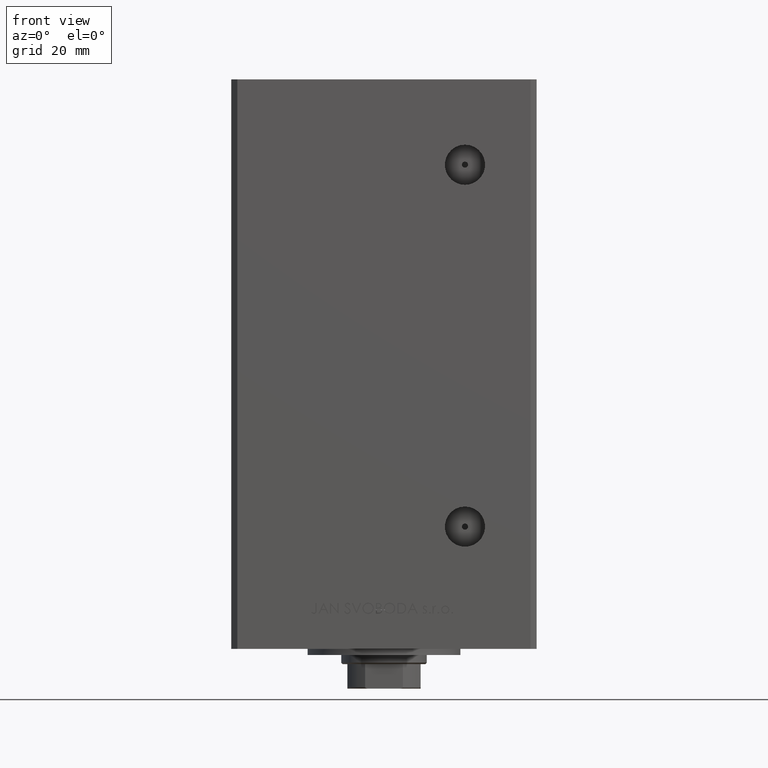
[diagram: clean part render]
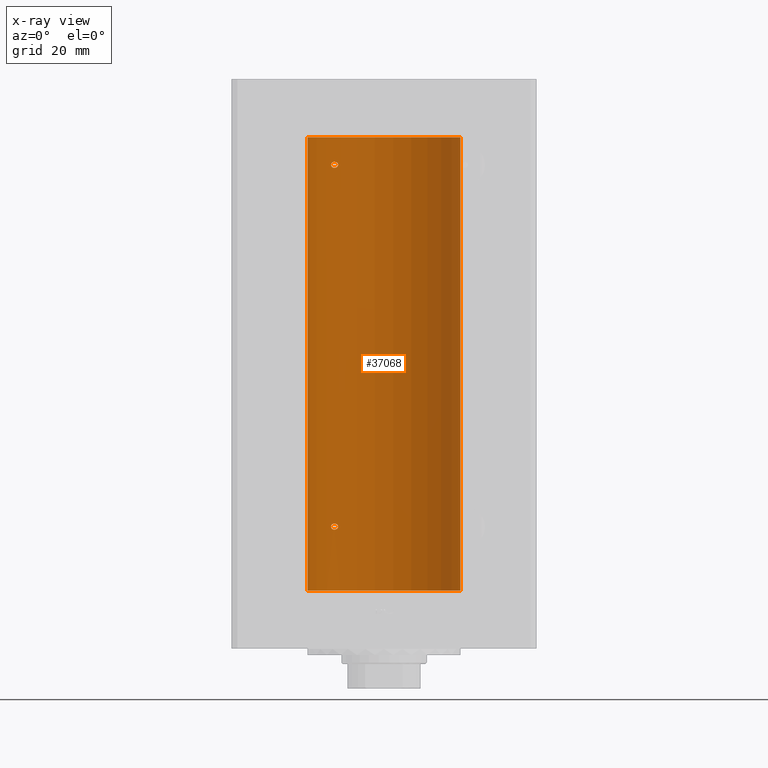
[diagram: x-ray — body ghosted, one internal face saturated and labeled with its STEP entity id]
A machine part, front view, then the same camera in x-ray: the body is ghosted and one INTERNAL B-rep face — a face not visible from any outside direction — is saturated and labeled: STEP entity #37068.
In plain terms, the highlighted cylindrical surface (partial cylindrical patch) has radius 25 mm, axis along (-0, -0, -1).
Its self-contained STEP definition (entity closure, byte-faithful):
#67 = CARTESIAN_POINT ( 'NONE',  ( -25.00000000000000000, 0.000000000000000000, 148.5000000000000000 ) ) ;
#578 = CYLINDRICAL_SURFACE ( 'NONE', #36050, 25.00000000000000000 ) ;
#1517 = CIRCLE ( 'NONE', #3138, 25.00000000000000000 ) ;
#2060 = CARTESIAN_POINT ( 'NONE',  ( -17.34935157289810093, 17.99999999999978328, 21.00000000000008882 ) ) ;
#2314 = CARTESIAN_POINT ( 'NONE',  ( -15.58230678163759642, 19.55030131031898577, 140.3437394867029582 ) ) ;
#2359 = CARTESIAN_POINT ( 'NONE',  ( -17.34935157289749696, 17.99999999999998579, 20.82899836042580688 ) ) ;
#2433 = EDGE_LOOP ( 'NONE', ( #13028, #10326 ) ) ;
#2561 = CARTESIAN_POINT ( 'NONE',  ( -15.00000000000018474, 20.00000000000002487, 139.5840388036241393 ) ) ;
#2912 = CARTESIAN_POINT ( 'NONE',  ( -17.30269557861141294, 18.04515136187502478, 139.1660420817557053 ) ) ;
#3138 = AXIS2_PLACEMENT_3D ( 'NONE', #18367, #29516, #38416 ) ;
#3199 = VERTEX_POINT ( 'NONE', #50067 ) ;
#3368 = CARTESIAN_POINT ( 'NONE',  ( -15.58164749401203686, 19.55082150006403907, 20.15667807268518885 ) ) ;
#3505 = LINE ( 'NONE', #27363, #10161 ) ;
#3643 = DIRECTION ( 'NONE',  ( -1.000000000000000000, 0.000000000000000000, 0.000000000000000000 ) ) ;
#5667 = EDGE_CURVE ( 'NONE', #3199, #14279, #33075, .T. ) ;
#6244 = CARTESIAN_POINT ( 'NONE',  ( 0.000000000000000000, 0.000000000000000000, 0.000000000000000000 ) ) ;
#6368 = CARTESIAN_POINT ( 'NONE',  ( -15.70535969280557254, 19.45169171760800708, 21.89896077211249192 ) ) ;
#6417 = CARTESIAN_POINT ( 'NONE',  ( -15.06722189748651175, 19.94943357555936458, 20.67598032487887849 ) ) ;
#6421 = EDGE_CURVE ( 'NONE', #46401, #6955, #1517, .T. ) ;
#6466 = CARTESIAN_POINT ( 'NONE',  ( -15.06722189748648866, 19.94943357555938590, 139.1759803248788785 ) ) ;
#6612 = CARTESIAN_POINT ( 'NONE',  ( -17.34935157289749696, 17.99999999999998224, 21.17097369060632417 ) ) ;
#6620 = CARTESIAN_POINT ( 'NONE',  ( -16.99843849356149050, 18.33190197607055794, 140.2468335145756839 ) ) ;
#6955 = VERTEX_POINT ( 'NONE', #67 ) ;
#7178 = CARTESIAN_POINT ( 'NONE',  ( -16.83415218046515349, 18.48332662461723785, 20.13431726628115115 ) ) ;
#7391 = CARTESIAN_POINT ( 'NONE',  ( -15.34624284195505162, 19.73614442075940190, 140.1876185318512853 ) ) ;
#7533 = ORIENTED_EDGE ( 'NONE', *, *, #50161, .F. ) ;
#7564 = VERTEX_POINT ( 'NONE', #37162 ) ;
#7867 = EDGE_LOOP ( 'NONE', ( #9340, #22298, #15549, #34836 ) ) ;
#7935 = EDGE_CURVE ( 'NONE', #49333, #31840, #33515, .T. ) ;
#9290 = EDGE_LOOP ( 'NONE', ( #29885, #7533 ) ) ;
#9340 = ORIENTED_EDGE ( 'NONE', *, *, #26825, .F. ) ;
#10023 = CARTESIAN_POINT ( 'NONE',  ( -15.34666241858318259, 19.73581294411415854, 138.8121224605375517 ) ) ;
#10161 = VECTOR ( 'NONE', #46409, 1000.000000000000000 ) ;
#10180 = CARTESIAN_POINT ( 'NONE',  ( -15.01476641895664876, 19.98894406010705183, 21.16879456340133459 ) ) ;
#10279 = CARTESIAN_POINT ( 'NONE',  ( -16.08757264251632080, 19.13682698743034649, 138.5034427658481775 ) ) ;
#10326 = ORIENTED_EDGE ( 'NONE', *, *, #7935, .F. ) ;
#10437 = CARTESIAN_POINT ( 'NONE',  ( -14.99999999999999112, 20.00000000000000711, 139.4999999999999716 ) ) ;
#10479 = CARTESIAN_POINT ( 'NONE',  ( -17.30269557861145202, 18.04515136187498570, 20.66604208175573376 ) ) ;
#10730 = CARTESIAN_POINT ( 'NONE',  ( -16.34293146994555812, 18.91921593628406129, 19.99734259067261277 ) ) ;
#10982 = CARTESIAN_POINT ( 'NONE',  ( -15.00000000000002842, 19.99999999999998224, 20.99999999999998934 ) ) ;
#11173 = B_SPLINE_CURVE_WITH_KNOTS ( 'NONE', 3,
 ( #14246, #41400, #10180, #44708, #49015, #41155, #40405, #13989, #6368, #48021, #29449, #21356, #21603, #18047, #33016, #36839, #17305, #37087, #6612, #2060 ),
 .UNSPECIFIED., .F., .F.,
 ( 4, 2, 2, 2, 2, 2, 2, 2, 2, 4 ),
 ( 0.004032696862986568168, 0.004284699222246932983, 0.004536701581507298665, 0.005040706300028030031, 0.005544711018548761396, 0.006048715737069493628, 0.007056725174110963297, 0.007308727533371326378, 0.007560729892631690326, 0.008064734611152429497 ),
 .UNSPECIFIED. ) ;
#12445 = CARTESIAN_POINT ( 'NONE',  ( -17.34935157289806185, 17.99999999999981526, 139.5000000000000853 ) ) ;
#13028 = ORIENTED_EDGE ( 'NONE', *, *, #22819, .F. ) ;
#13336 = CIRCLE ( 'NONE', #41701, 25.00000000000000000 ) ;
#13989 = CARTESIAN_POINT ( 'NONE',  ( -15.58230678163764260, 19.55030131031895380, 21.84373948670293331 ) ) ;
#13997 = CARTESIAN_POINT ( 'NONE',  ( -15.06763582406798818, 19.94912143246363811, 139.8250699387717475 ) ) ;
#14039 = CARTESIAN_POINT ( 'NONE',  ( -15.34666241858321634, 19.73581294411414078, 20.31212246053760495 ) ) ;
#14246 = CARTESIAN_POINT ( 'NONE',  ( -15.00000000000002842, 19.99999999999998224, 20.99999999999998934 ) ) ;
#14279 = VERTEX_POINT ( 'NONE', #32884 ) ;
#14295 = CARTESIAN_POINT ( 'NONE',  ( -16.71492528194906768, 18.59135325782697734, 20.08014155834204217 ) ) ;
#14545 = CARTESIAN_POINT ( 'NONE',  ( -15.70664578139654566, 19.45064696206090105, 20.10057959949211082 ) ) ;
#14753 = CARTESIAN_POINT ( 'NONE',  ( -16.72476285461317502, 18.58415905903083498, 140.4449447607956927 ) ) ;
#15012 = CARTESIAN_POINT ( 'NONE',  ( -17.34935157289806185, 17.99999999999981526, 139.5000000000000853 ) ) ;
#15549 = ORIENTED_EDGE ( 'NONE', *, *, #34511, .T. ) ;
#16070 = DIRECTION ( 'NONE',  ( -0.000000000000000000, -0.000000000000000000, -1.000000000000000000 ) ) ;
#17305 = CARTESIAN_POINT ( 'NONE',  ( -17.19010376497224968, 18.15221652163108601, 21.53567012356800703 ) ) ;
#17850 = CARTESIAN_POINT ( 'NONE',  ( -17.05249165747622442, 18.28208333366434601, 20.29221922003641509 ) ) ;
#17900 = CARTESIAN_POINT ( 'NONE',  ( -17.34935157289806185, 17.99999999999981526, 139.5000000000000853 ) ) ;
#18047 = CARTESIAN_POINT ( 'NONE',  ( -16.99843849356152248, 18.33190197607051886, 21.74683351457564839 ) ) ;
#18054 = CARTESIAN_POINT ( 'NONE',  ( -17.14593038898727428, 18.19399314418736324, 140.0959448831964949 ) ) ;
#18095 = CARTESIAN_POINT ( 'NONE',  ( -15.01482636753736166, 19.98889854010113254, 20.83120266100769769 ) ) ;
#18150 = CARTESIAN_POINT ( 'NONE',  ( -17.05249165747618534, 18.28208333366438509, 138.7922192200364009 ) ) ;
#18317 = CARTESIAN_POINT ( 'NONE',  ( -15.01476641895662567, 19.98894406010707314, 139.6687945634013204 ) ) ;
#18367 = CARTESIAN_POINT ( 'NONE',  ( 0.000000000000000000, 0.000000000000000000, 148.5000000000000000 ) ) ;
#18859 = CARTESIAN_POINT ( 'NONE',  ( -15.10490010356607904, 19.92096840819818127, 20.60376667132250716 ) ) ;
#19235 = CARTESIAN_POINT ( 'NONE',  ( 25.00000000000000000, 3.061616997868383043E-15, 0.000000000000000000 ) ) ;
#19375 = FACE_BOUND ( 'NONE', #2433, .T. ) ;
#21356 = CARTESIAN_POINT ( 'NONE',  ( -16.46913072925707056, 18.81168496547888580, 22.00577755881141329 ) ) ;
#21453 = CARTESIAN_POINT ( 'NONE',  ( -15.70664578139651546, 19.45064696206092947, 138.6005795994921073 ) ) ;
#21603 = CARTESIAN_POINT ( 'NONE',  ( -16.72476285461321766, 18.58415905903079945, 21.94494476079569978 ) ) ;
#21896 = CARTESIAN_POINT ( 'NONE',  ( -15.00000000000022027, 20.00000000000000355, 20.91594745860243165 ) ) ;
#21946 = CARTESIAN_POINT ( 'NONE',  ( -15.01482636753733146, 19.98889854010115741, 139.3312026610076941 ) ) ;
#22100 = CARTESIAN_POINT ( 'NONE',  ( -16.46913072925702792, 18.81168496547891777, 140.5057775588114168 ) ) ;
#22298 = ORIENTED_EDGE ( 'NONE', *, *, #6421, .T. ) ;
#22738 = DIRECTION ( 'NONE',  ( -0.000000000000000000, 0.000000000000000000, 1.000000000000000000 ) ) ;
#22819 = EDGE_CURVE ( 'NONE', #31840, #49333, #24092, .T. ) ;
#23193 = FACE_BOUND ( 'NONE', #9290, .T. ) ;
#23796 = CARTESIAN_POINT ( 'NONE',  ( -14.99999999999999112, 20.00000000000000711, 139.4999999999999716 ) ) ;
#24092 = B_SPLINE_CURVE_WITH_KNOTS ( 'NONE', 3,
 ( #17900, #32867, #2912, #41761, #18150, #37689, #48614, #48856, #29551, #10279, #41504, #21453, #25751, #10023, #41253, #25249, #6466, #21946, #45307, #29808 ),
 .UNSPECIFIED., .F., .F.,
 ( 4, 2, 2, 2, 2, 2, 2, 2, 2, 4 ),
 ( 2.254873622441466949E-16, 0.0005040871078735091300, 0.001008174215746792746, 0.001512261323620076470, 0.002016348431493359978, 0.002520435539366643485, 0.003024522647239927427, 0.003528609755113210501, 0.003780653309049884347, 0.004032696862986557759 ),
 .UNSPECIFIED. ) ;
#25249 = CARTESIAN_POINT ( 'NONE',  ( -15.10490010356605595, 19.92096840819819903, 139.1037666713224610 ) ) ;
#25751 = CARTESIAN_POINT ( 'NONE',  ( -15.58164749401199956, 19.55082150006405328, 138.6566780726851675 ) ) ;
#26825 = EDGE_CURVE ( 'NONE', #46401, #38765, #3505, .T. ) ;
#27363 = CARTESIAN_POINT ( 'NONE',  ( 25.00000000000000000, 3.061616997868383043E-15, 148.5000000000000000 ) ) ;
#29449 = CARTESIAN_POINT ( 'NONE',  ( -16.08745393861406825, 19.13692152169247507, 21.99650150998692766 ) ) ;
#29456 = CARTESIAN_POINT ( 'NONE',  ( -16.08745393861402917, 19.13692152169251059, 140.4965015099868992 ) ) ;
#29516 = DIRECTION ( 'NONE',  ( -0.000000000000000000, 0.000000000000000000, 1.000000000000000000 ) ) ;
#29551 = CARTESIAN_POINT ( 'NONE',  ( -16.34293146994552259, 18.91921593628409681, 138.4973425906726163 ) ) ;
#29752 = CARTESIAN_POINT ( 'NONE',  ( -25.00000000000000000, 0.000000000000000000, 148.5000000000000000 ) ) ;
#29808 = CARTESIAN_POINT ( 'NONE',  ( -14.99999999999999112, 20.00000000000000711, 139.4999999999999716 ) ) ;
#29885 = ORIENTED_EDGE ( 'NONE', *, *, #5667, .F. ) ;
#30217 = CARTESIAN_POINT ( 'NONE',  ( -17.19010376497220705, 18.15221652163111088, 140.0356701235680248 ) ) ;
#30259 = CARTESIAN_POINT ( 'NONE',  ( -16.46844752485328911, 18.81003400474351039, 20.01154431903891862 ) ) ;
#31840 = VERTEX_POINT ( 'NONE', #12445 ) ;
#32867 = CARTESIAN_POINT ( 'NONE',  ( -17.34935157289747210, 18.00000000000002132, 139.3289983604257998 ) ) ;
#32884 = CARTESIAN_POINT ( 'NONE',  ( -15.00000000000002842, 19.99999999999998224, 20.99999999999998934 ) ) ;
#33016 = CARTESIAN_POINT ( 'NONE',  ( -17.05007833789895955, 18.28384926940283606, 21.70137399901213371 ) ) ;
#33075 = B_SPLINE_CURVE_WITH_KNOTS ( 'NONE', 3,
 ( #49319, #2359, #10479, #41958, #17850, #7178, #14295, #30259, #10730, #33319, #48806, #14545, #3368, #14039, #45765, #18859, #6417, #18095, #21896, #10982 ),
 .UNSPECIFIED., .F., .F.,
 ( 4, 2, 2, 2, 2, 2, 2, 2, 2, 4 ),
 ( 2.011680962688586771E-16, 0.0005040871078734975291, 0.001008174215746794047, 0.001512261323620090565, 0.002016348431493386866, 0.002520435539366683384, 0.003024522647239979902, 0.003528609755113272951, 0.003780653309049920342, 0.004032696862986568168 ),
 .UNSPECIFIED. ) ;
#33273 = CARTESIAN_POINT ( 'NONE',  ( -17.34935157289746854, 18.00000000000001421, 139.6709736906063029 ) ) ;
#33319 = CARTESIAN_POINT ( 'NONE',  ( -16.08757264251635277, 19.13682698743030386, 20.00344276584819525 ) ) ;
#33515 = B_SPLINE_CURVE_WITH_KNOTS ( 'NONE', 3,
 ( #10437, #2561, #18317, #13997, #41406, #33529, #7391, #2314, #49524, #37097, #29456, #22100, #14753, #6620, #49785, #18054, #30217, #45722, #33273, #15012 ),
 .UNSPECIFIED., .F., .F.,
 ( 4, 2, 2, 2, 2, 2, 2, 2, 2, 4 ),
 ( 0.004032696862986557759, 0.004284699222246954667, 0.004536701581507351574, 0.005040706300028082940, 0.005544711018548810835, 0.006048715737069539598, 0.007056725174110996257, 0.007308727533371349797, 0.007560729892631701601, 0.008064734611152412150 ),
 .UNSPECIFIED. ) ;
#33529 = CARTESIAN_POINT ( 'NONE',  ( -15.23594348686699185, 19.82115246225716021, 140.0887219326858144 ) ) ;
#34036 = CARTESIAN_POINT ( 'NONE',  ( 25.00000000000000000, 3.061616997868383043E-15, 148.5000000000000000 ) ) ;
#34511 = EDGE_CURVE ( 'NONE', #6955, #7564, #37631, .T. ) ;
#34836 = ORIENTED_EDGE ( 'NONE', *, *, #36619, .F. ) ;
#34852 = CARTESIAN_POINT ( 'NONE',  ( 0.000000000000000000, 0.000000000000000000, 148.5000000000000000 ) ) ;
#35358 = FACE_OUTER_BOUND ( 'NONE', #7867, .T. ) ;
#36050 = AXIS2_PLACEMENT_3D ( 'NONE', #34852, #16070, #3643 ) ;
#36619 = EDGE_CURVE ( 'NONE', #38765, #7564, #13336, .T. ) ;
#36839 = CARTESIAN_POINT ( 'NONE',  ( -17.14593038898733113, 18.19399314418732061, 21.59594488319649130 ) ) ;
#37068 = ADVANCED_FACE ( 'NONE', ( #35358, #23193, #19375 ), #578, .F. ) ;
#37087 = CARTESIAN_POINT ( 'NONE',  ( -17.30163983552693452, 18.04615713653364750, 21.33600747272777909 ) ) ;
#37097 = CARTESIAN_POINT ( 'NONE',  ( -15.95796937689560480, 19.24499537862567422, 140.4757730996521730 ) ) ;
#37162 = CARTESIAN_POINT ( 'NONE',  ( -25.00000000000000000, 0.000000000000000000, 0.000000000000000000 ) ) ;
#37631 = LINE ( 'NONE', #29752, #44067 ) ;
#37689 = CARTESIAN_POINT ( 'NONE',  ( -16.83415218046510731, 18.48332662461726983, 138.6343172662811298 ) ) ;
#38416 = DIRECTION ( 'NONE',  ( 1.000000000000000000, 0.000000000000000000, 0.000000000000000000 ) ) ;
#38765 = VERTEX_POINT ( 'NONE', #19235 ) ;
#40405 = CARTESIAN_POINT ( 'NONE',  ( -15.34624284195510135, 19.73614442075936992, 21.68761853185130306 ) ) ;
#41155 = CARTESIAN_POINT ( 'NONE',  ( -15.23594348686703448, 19.82115246225713179, 21.58872193268582151 ) ) ;
#41253 = CARTESIAN_POINT ( 'NONE',  ( -15.23538646979298505, 19.82157806413532697, 138.9119998952827757 ) ) ;
#41400 = CARTESIAN_POINT ( 'NONE',  ( -15.00000000000021316, 19.99999999999998934, 21.08403880362416061 ) ) ;
#41406 = CARTESIAN_POINT ( 'NONE',  ( -15.10490800566735103, 19.92096305044241689, 139.8962931740442173 ) ) ;
#41504 = CARTESIAN_POINT ( 'NONE',  ( -15.95808436639360117, 19.24489366819300784, 138.5242608788495602 ) ) ;
#41701 = AXIS2_PLACEMENT_3D ( 'NONE', #6244, #22738, #45847 ) ;
#41761 = CARTESIAN_POINT ( 'NONE',  ( -17.15234217094406333, 18.18812579706696653, 138.8965730437749926 ) ) ;
#41958 = CARTESIAN_POINT ( 'NONE',  ( -17.15234217094410596, 18.18812579706693100, 20.39657304377494640 ) ) ;
#44067 = VECTOR ( 'NONE', #45254, 1000.000000000000000 ) ;
#44708 = CARTESIAN_POINT ( 'NONE',  ( -15.06763582406801483, 19.94912143246361325, 21.32506993877174395 ) ) ;
#45254 = DIRECTION ( 'NONE',  ( -0.000000000000000000, -0.000000000000000000, -1.000000000000000000 ) ) ;
#45307 = CARTESIAN_POINT ( 'NONE',  ( -15.00000000000018119, 20.00000000000001421, 139.4159474586024032 ) ) ;
#45722 = CARTESIAN_POINT ( 'NONE',  ( -17.30163983552688833, 18.04615713653367948, 139.8360074727277720 ) ) ;
#45765 = CARTESIAN_POINT ( 'NONE',  ( -15.23538646979301170, 19.82157806413531631, 20.41199989528276149 ) ) ;
#45847 = DIRECTION ( 'NONE',  ( 1.000000000000000000, 0.000000000000000000, 0.000000000000000000 ) ) ;
#46401 = VERTEX_POINT ( 'NONE', #34036 ) ;
#46409 = DIRECTION ( 'NONE',  ( -0.000000000000000000, -0.000000000000000000, -1.000000000000000000 ) ) ;
#48021 = CARTESIAN_POINT ( 'NONE',  ( -15.95796937689564565, 19.24499537862563869, 21.97577309965217651 ) ) ;
#48614 = CARTESIAN_POINT ( 'NONE',  ( -16.71492528194901794, 18.59135325782701642, 138.5801415583420351 ) ) ;
#48806 = CARTESIAN_POINT ( 'NONE',  ( -15.95808436639362782, 19.24489366819297942, 20.02426087884952821 ) ) ;
#48856 = CARTESIAN_POINT ( 'NONE',  ( -16.46844752485324648, 18.81003400474354947, 138.5115443190389044 ) ) ;
#49015 = CARTESIAN_POINT ( 'NONE',  ( -15.10490800566739011, 19.92096305044238491, 21.39629317404425279 ) ) ;
#49319 = CARTESIAN_POINT ( 'NONE',  ( -17.34935157289810093, 17.99999999999978328, 21.00000000000008882 ) ) ;
#49333 = VERTEX_POINT ( 'NONE', #23796 ) ;
#49524 = CARTESIAN_POINT ( 'NONE',  ( -15.70535969280552280, 19.45169171760802485, 140.3989607721124457 ) ) ;
#49785 = CARTESIAN_POINT ( 'NONE',  ( -17.05007833789892047, 18.28384926940287869, 140.2013739990121621 ) ) ;
#50067 = CARTESIAN_POINT ( 'NONE',  ( -17.34935157289810093, 17.99999999999978328, 21.00000000000008882 ) ) ;
#50161 = EDGE_CURVE ( 'NONE', #14279, #3199, #11173, .T. ) ;